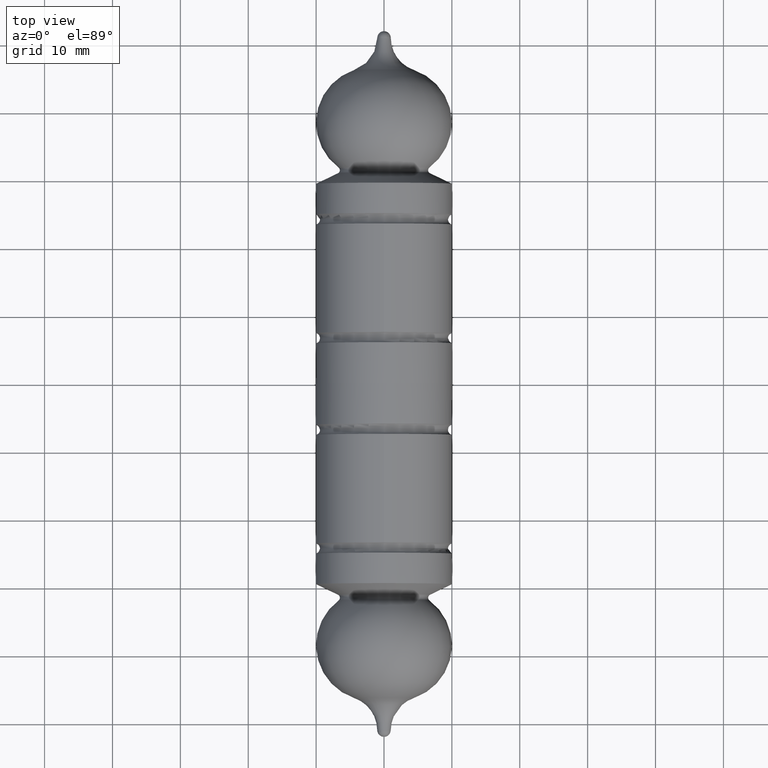
[diagram: clean part render]
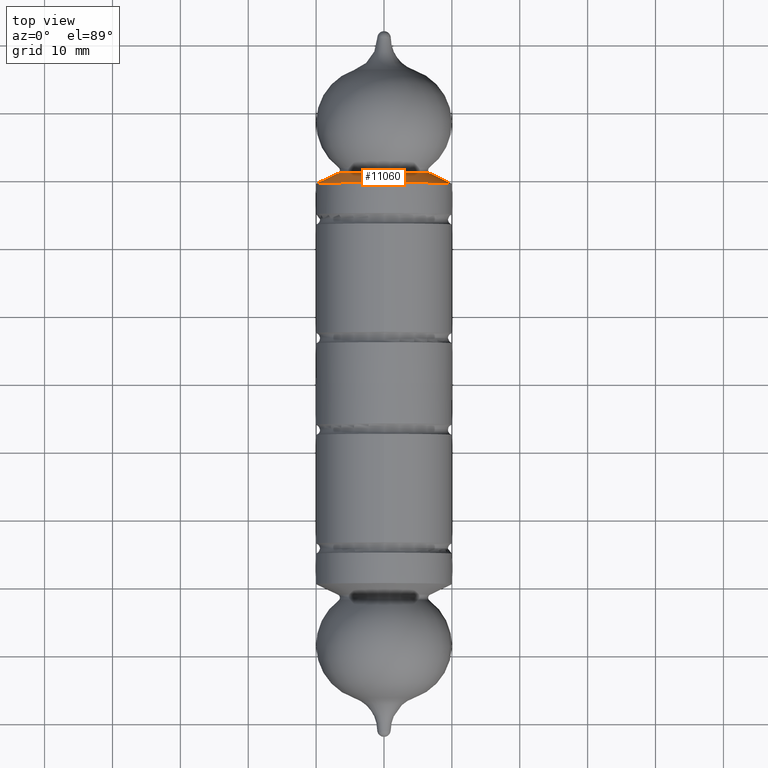
[diagram: same view with one face highlighted and labeled with its STEP entity id]
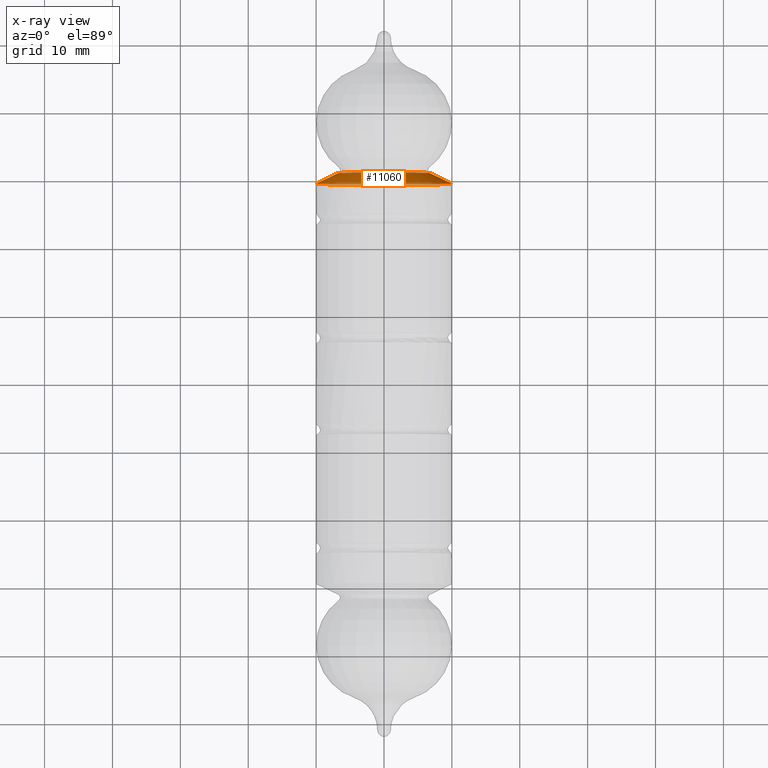
[diagram: x-ray of the same camera — body ghosted, the highlighted face saturated]
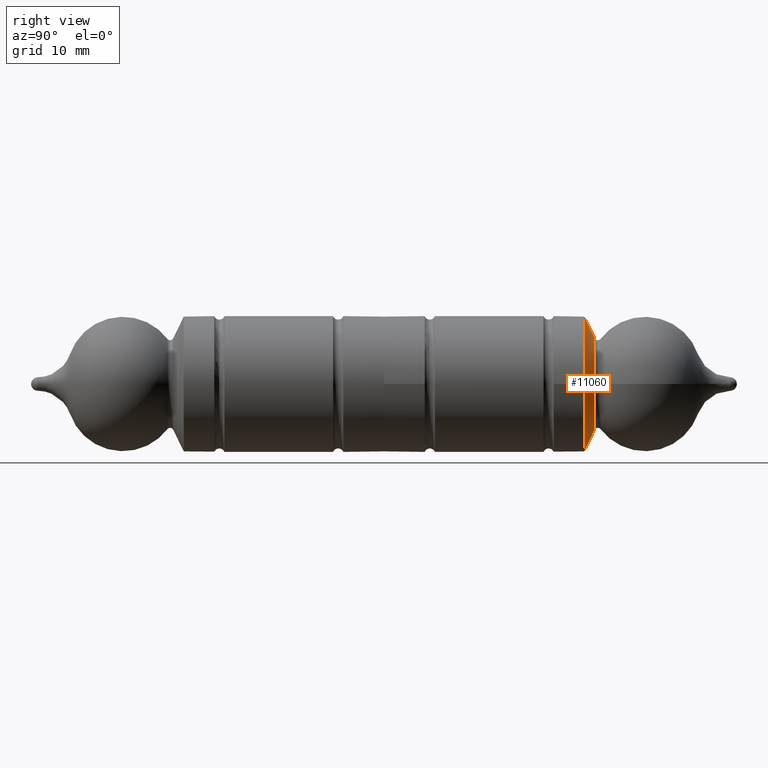
[diagram: same view with one face highlighted and labeled with its STEP entity id]
A machine part, top view. The second image highlights one B-rep face of the part: STEP entity #11060.
The next image is the same camera in x-ray: the body ghosted, the highlighted face saturated — about 16% of this face is hidden behind the body in this view.
A second angle (right view) of the same face is appended — the face is thin or edge-on in the first view.
In plain terms, the highlighted conical surface has half-angle 64.281 deg.
Its self-contained STEP definition (entity closure, byte-faithful):
#414 = EDGE_CURVE ( 'NONE', #8158, #8158, #7271, .T. ) ;
#433 = FACE_BOUND ( 'NONE', #10127, .T. ) ;
#702 = DIRECTION ( 'NONE',  ( 2.905941557298832194E-17, 1.000000000000000000, -3.697785493223511449E-32 ) ) ;
#1194 = VERTEX_POINT ( 'NONE', #8359 ) ;
#2220 = DIRECTION ( 'NONE',  ( 2.905941557298832194E-17, 1.000000000000000000, -3.697785493223511449E-32 ) ) ;
#2438 = FACE_OUTER_BOUND ( 'NONE', #5980, .T. ) ;
#2916 = EDGE_CURVE ( 'NONE', #1194, #1194, #4855, .T. ) ;
#3990 = CONICAL_SURFACE ( 'NONE', #5784, 6.783021983517620868, 1.121917134614727418 ) ;
#4115 = ORIENTED_EDGE ( 'NONE', *, *, #2916, .F. ) ;
#4855 = CIRCLE ( 'NONE', #7555, 10.00000000000005862 ) ;
#5280 = DIRECTION ( 'NONE',  ( -1.000000000000000000, 0.000000000000000000, 0.000000000000000000 ) ) ;
#5784 = AXIS2_PLACEMENT_3D ( 'NONE', #11946, #6187, #5280 ) ;
#5980 = EDGE_LOOP ( 'NONE', ( #4115 ) ) ;
#6092 = CARTESIAN_POINT ( 'NONE',  ( -9.022812820757585986E-16, -31.04953297527637446, 1.148145126073417818E-30 ) ) ;
#6187 = DIRECTION ( 'NONE',  ( 2.905941557298832194E-17, 1.000000000000000000, -3.697785493223511449E-32 ) ) ;
#7086 = DIRECTION ( 'NONE',  ( -1.000000000000000000, 0.000000000000000000, 0.000000000000000000 ) ) ;
#7271 = CIRCLE ( 'NONE', #8376, 6.783021983517620868 ) ;
#7555 = AXIS2_PLACEMENT_3D ( 'NONE', #7661, #702, #8526 ) ;
#7661 = CARTESIAN_POINT ( 'NONE',  ( -8.572527594031550104E-16, -29.50000000000000000, 1.090846720500936168E-30 ) ) ;
#8158 = VERTEX_POINT ( 'NONE', #12238 ) ;
#8359 = CARTESIAN_POINT ( 'NONE',  ( -10.00000000000005862, -29.50000000000000000, 1.090846720500936168E-30 ) ) ;
#8376 = AXIS2_PLACEMENT_3D ( 'NONE', #6092, #2220, #7086 ) ;
#8526 = DIRECTION ( 'NONE',  ( -1.000000000000000000, 0.000000000000000000, 0.000000000000000000 ) ) ;
#10037 = ORIENTED_EDGE ( 'NONE', *, *, #414, .T. ) ;
#10127 = EDGE_LOOP ( 'NONE', ( #10037 ) ) ;
#11060 = ADVANCED_FACE ( 'NONE', ( #2438, #433 ), #3990, .T. ) ;
#11946 = CARTESIAN_POINT ( 'NONE',  ( -9.022812820757585986E-16, -31.04953297527637446, 1.148145126073417818E-30 ) ) ;
#12238 = CARTESIAN_POINT ( 'NONE',  ( -6.783021983517621756, -31.04953297527637446, 1.148145126073417818E-30 ) ) ;